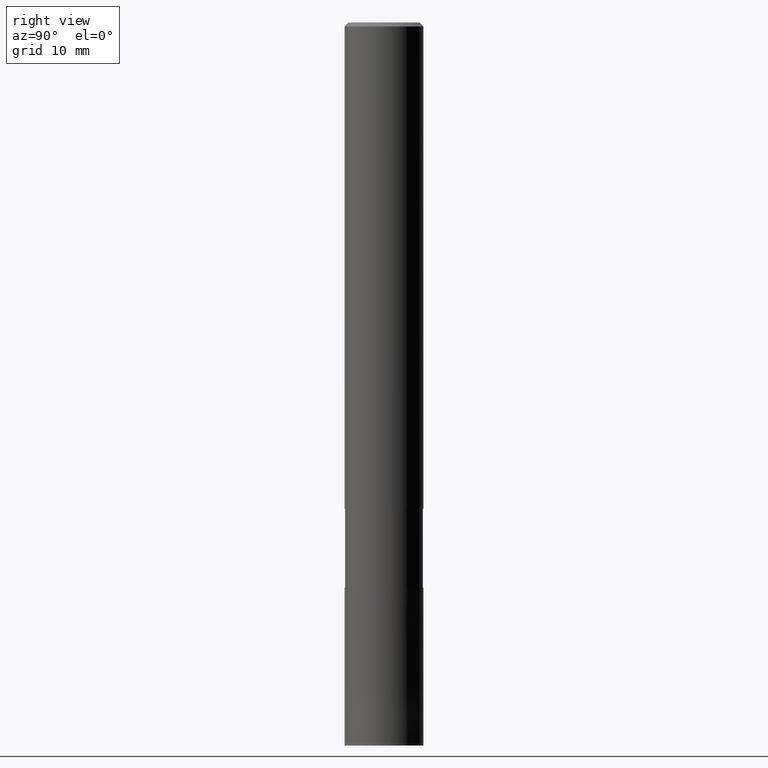
[diagram: clean part render]
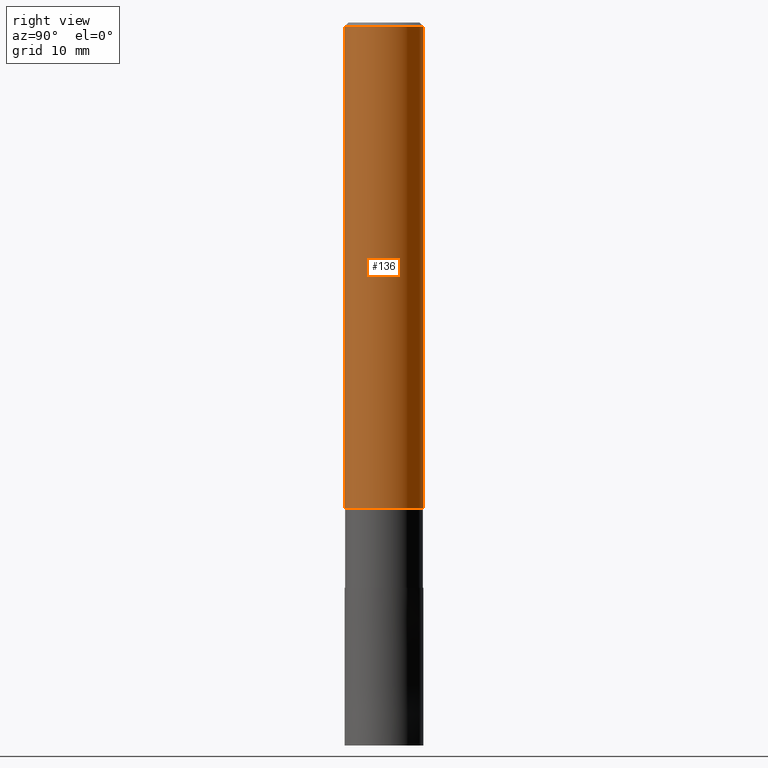
[diagram: same view with one face highlighted and labeled with its STEP entity id]
A machine part, right view. The second image highlights one B-rep face of the part: STEP entity #136.
In plain terms, the highlighted cylindrical surface (partial cylindrical patch) has radius 6 mm, axis along (-0, -0, 1).
Its self-contained STEP definition (entity closure, byte-faithful):
#92=VERTEX_POINT('',#216);
#130=EDGE_CURVE('',#92,#134,#258,.T.);
#132=EDGE_CURVE('',#156,#142,#260,.T.);
#134=VERTEX_POINT('',#262);
#136=ADVANCED_FACE('',(#264),#265,.T.);
#142=VERTEX_POINT('',#272);
#146=EDGE_CURVE('',#92,#142,#276,.T.);
#156=VERTEX_POINT('',#290);
#164=EDGE_CURVE('',#134,#156,#298,.T.);
#216=CARTESIAN_POINT('',(0.0,6.0,-0.599999999999994));
#258=LINE('',#397,#398);
#260=LINE('',#401,#402);
#262=CARTESIAN_POINT('',(0.0,6.0,-74.0));
#264=FACE_OUTER_BOUND('',#406,.T.);
#265=CYLINDRICAL_SURFACE('',#407,6.0);
#272=CARTESIAN_POINT('',(7.34763812293426E-016,-6.0,-0.599999999999994));
#276=CIRCLE('',#419,6.0);
#290=CARTESIAN_POINT('',(7.34763812293426E-016,-6.0,-74.0));
#298=CIRCLE('',#448,6.0);
#397=CARTESIAN_POINT('',(-7.34763812293426E-016,6.0,-37.3));
#398=VECTOR('',#544,1.0);
#401=CARTESIAN_POINT('',(7.34763812293426E-016,-6.0,-37.3));
#402=VECTOR('',#545,1.0);
#406=EDGE_LOOP('',(#547,#548,#549,#550));
#407=AXIS2_PLACEMENT_3D('',#551,#552,#553);
#419=AXIS2_PLACEMENT_3D('',#566,#567,#568);
#448=AXIS2_PLACEMENT_3D('',#599,#600,#601);
#544=DIRECTION('',(0.0,0.0,-1.0));
#545=DIRECTION('',(-0.0,-0.0,1.0));
#547=ORIENTED_EDGE('',*,*,#130,.F.);
#548=ORIENTED_EDGE('',*,*,#146,.T.);
#549=ORIENTED_EDGE('',*,*,#132,.F.);
#550=ORIENTED_EDGE('',*,*,#164,.F.);
#551=CARTESIAN_POINT('',(0.0,0.0,-37.3));
#552=DIRECTION('',(-0.0,-0.0,1.0));
#553=DIRECTION('',(0.0,1.0,0.0));
#566=CARTESIAN_POINT('',(0.0,0.0,-0.599999999999994));
#567=DIRECTION('',(0.0,0.0,-1.0));
#568=DIRECTION('',(0.0,1.0,0.0));
#599=CARTESIAN_POINT('',(0.0,0.0,-74.0));
#600=DIRECTION('',(0.0,0.0,-1.0));
#601=DIRECTION('',(0.0,1.0,0.0));